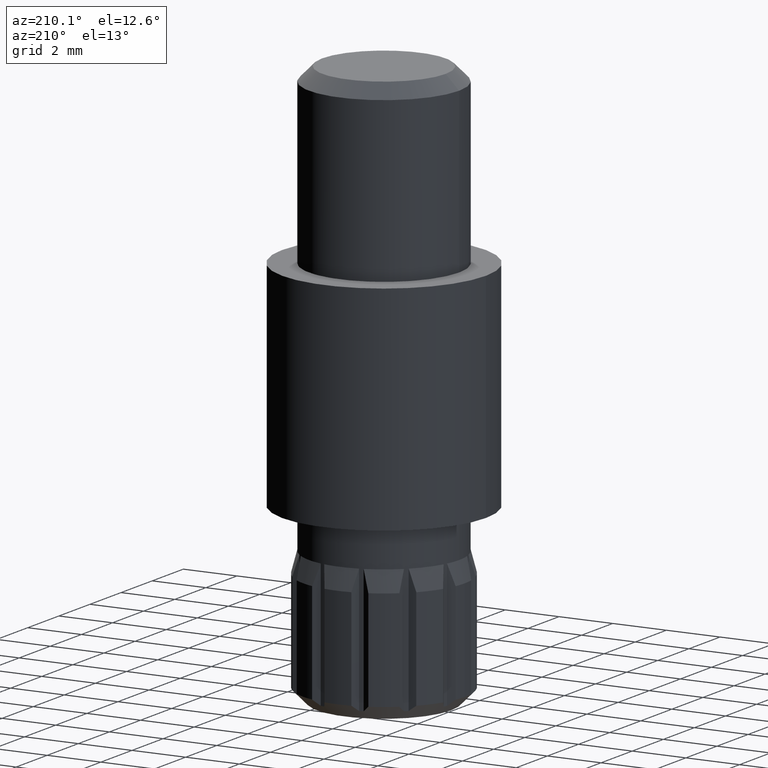
[diagram: clean part render]
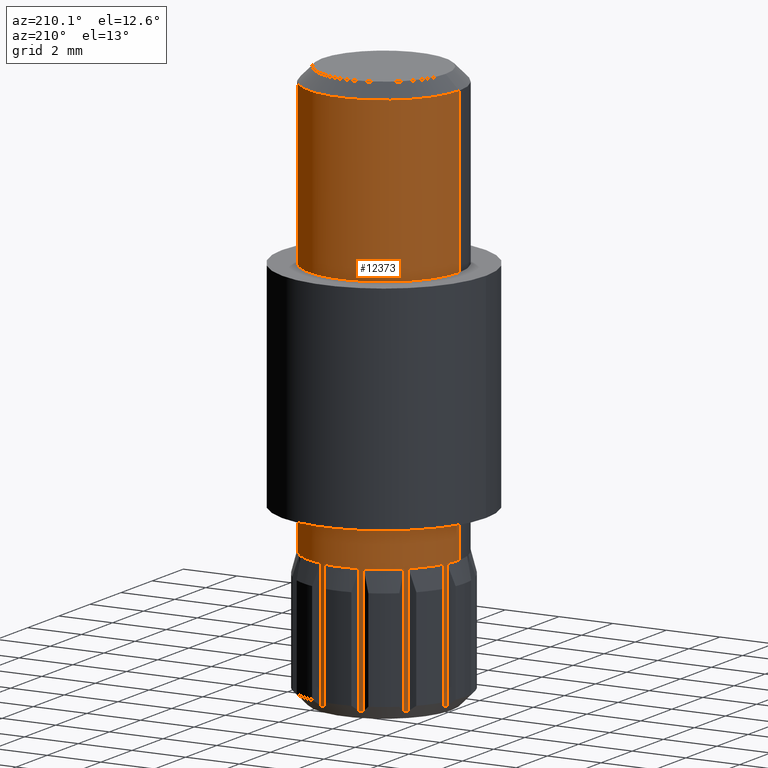
[diagram: same view with one face highlighted and labeled with its STEP entity id]
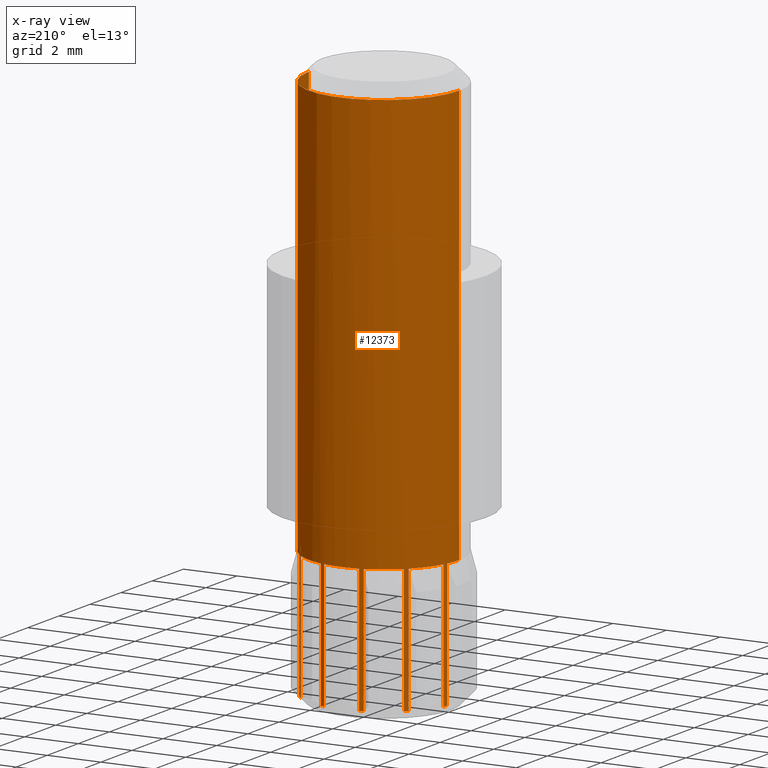
[diagram: x-ray of the same camera — body ghosted, the highlighted face saturated]
A machine part, auxiliary view. The second image highlights one B-rep face of the part: STEP entity #12373.
The next image is the same camera in x-ray: the body ghosted, the highlighted face saturated — about 0% of this face is hidden behind the body in this view.
In plain terms, the highlighted cylindrical surface (partial cylindrical patch) has radius 2.8 mm, axis along (-0, -0, -1).
Its self-contained STEP definition (entity closure, byte-faithful):
#5 = DIRECTION ( 'NONE',  ( 1.000000000000000000, 0.0000000000000000000, 0.0000000000000000000 ) ) ;
#92 = DIRECTION ( 'NONE',  ( 0.0000000000000000000, 0.0000000000000000000, 1.000000000000000000 ) ) ;
#130 = ORIENTED_EDGE ( 'NONE', *, *, #4485, .T. ) ;
#215 = EDGE_CURVE ( 'NONE', #10426, #12273, #4755, .T. ) ;
#311 = DIRECTION ( 'NONE',  ( 0.0000000000000000000, 0.0000000000000000000, 1.000000000000000000 ) ) ;
#484 = CARTESIAN_POINT ( 'NONE',  ( -0.6500000000000000200, 2.723508766279264300, 5.000000000000000000 ) ) ;
#579 = CARTESIAN_POINT ( 'NONE',  ( -0.6499999999999999100, 2.723508766279263900, 0.2999999999999996000 ) ) ;
#614 = AXIS2_PLACEMENT_3D ( 'NONE', #6847, #860, #7843 ) ;
#633 = ORIENTED_EDGE ( 'NONE', *, *, #1317, .T. ) ;
#691 = VERTEX_POINT ( 'NONE', #2503 ) ;
#811 = VECTOR ( 'NONE', #5266, 1000.000000000000000 ) ;
#860 = DIRECTION ( 'NONE',  ( 0.0000000000000000000, 0.0000000000000000000, 1.000000000000000000 ) ) ;
#885 = ORIENTED_EDGE ( 'NONE', *, *, #3033, .T. ) ;
#888 = CARTESIAN_POINT ( 'NONE',  ( 2.723508766279266500, 0.6499999999999904700, 5.000000000000000900 ) ) ;
#922 = CIRCLE ( 'NONE', #2795, 2.800000000000000300 ) ;
#977 = CARTESIAN_POINT ( 'NONE',  ( -2.799999999999999800, 0.0000000000000000000, 20.50000000000000400 ) ) ;
#988 = DIRECTION ( 'NONE',  ( 1.000000000000000000, 0.0000000000000000000, 0.0000000000000000000 ) ) ;
#1014 = CIRCLE ( 'NONE', #5647, 2.800000000000000300 ) ;
#1134 = ORIENTED_EDGE ( 'NONE', *, *, #2405, .F. ) ;
#1142 = AXIS2_PLACEMENT_3D ( 'NONE', #7932, #1966, #8940 ) ;
#1212 = CARTESIAN_POINT ( 'NONE',  ( -2.723508766279257200, 0.6500000000000284400, 0.2999999999999996000 ) ) ;
#1317 = EDGE_CURVE ( 'NONE', #12544, #7139, #11454, .T. ) ;
#1348 = CARTESIAN_POINT ( 'NONE',  ( 2.033627779027463100, 1.924670895599512700, 5.000000000000000000 ) ) ;
#1378 = CARTESIAN_POINT ( 'NONE',  ( 0.6500000000000000200, 2.723508766279264300, 5.000000000000000000 ) ) ;
#1399 = VERTEX_POINT ( 'NONE', #1212 ) ;
#1447 = CARTESIAN_POINT ( 'NONE',  ( 0.0000000000000000000, 0.0000000000000000000, 5.000000000000000000 ) ) ;
#1448 = CARTESIAN_POINT ( 'NONE',  ( 2.033627779027462600, 1.924670895599512400, 5.000000000000000900 ) ) ;
#1452 = VERTEX_POINT ( 'NONE', #10294 ) ;
#1539 = CARTESIAN_POINT ( 'NONE',  ( -2.033627779027435500, 1.924670895599541100, 5.000000000000000000 ) ) ;
#1561 = EDGE_LOOP ( 'NONE', ( #2504, #885, #12301, #11725, #11933, #8503, #5979, #5000, #5855, #1134, #9874, #2152, #3061, #8431, #4154, #2643, #4704, #1613, #11780, #11888, #633, #11758, #12396, #2315, #130, #6355, #11712, #10083 ) ) ;
#1599 = EDGE_CURVE ( 'NONE', #8572, #6581, #2232, .T. ) ;
#1613 = ORIENTED_EDGE ( 'NONE', *, *, #12640, .F. ) ;
#1634 = CARTESIAN_POINT ( 'NONE',  ( 2.683627779027459900, 0.7988378706797408800, 0.2999999999999996000 ) ) ;
#1733 = VERTEX_POINT ( 'NONE', #579 ) ;
#1860 = CARTESIAN_POINT ( 'NONE',  ( -2.723508766279257200, 0.6500000000000284400, 5.000000000000000000 ) ) ;
#1899 = LINE ( 'NONE', #10420, #12175 ) ;
#1966 = DIRECTION ( 'NONE',  ( -0.0000000000000000000, -0.0000000000000000000, 1.000000000000000000 ) ) ;
#1987 = LINE ( 'NONE', #484, #6984 ) ;
#1999 = CARTESIAN_POINT ( 'NONE',  ( 2.799999999999999800, 3.429011037612588300E-016, 20.50000000000000400 ) ) ;
#2019 = DIRECTION ( 'NONE',  ( 0.0000000000000000000, 0.0000000000000000000, 1.000000000000000000 ) ) ;
#2078 = EDGE_CURVE ( 'NONE', #9729, #8572, #7383, .T. ) ;
#2092 = VECTOR ( 'NONE', #9267, 1000.000000000000000 ) ;
#2152 = ORIENTED_EDGE ( 'NONE', *, *, #1599, .T. ) ;
#2156 = VERTEX_POINT ( 'NONE', #1448 ) ;
#2170 = LINE ( 'NONE', #1539, #4190 ) ;
#2200 = CARTESIAN_POINT ( 'NONE',  ( 0.0000000000000000000, 0.0000000000000000000, 0.2999999999999996000 ) ) ;
#2232 = LINE ( 'NONE', #4902, #7223 ) ;
#2315 = ORIENTED_EDGE ( 'NONE', *, *, #6096, .T. ) ;
#2319 = CARTESIAN_POINT ( 'NONE',  ( -2.683627779027448800, 0.7988378706797784100, 5.000000000000000000 ) ) ;
#2321 = EDGE_CURVE ( 'NONE', #5934, #3616, #11111, .T. ) ;
#2405 = EDGE_CURVE ( 'NONE', #9729, #3536, #2542, .T. ) ;
#2448 = DIRECTION ( 'NONE',  ( -1.047444401652940200E-014, -1.000000000000000000, 0.0000000000000000000 ) ) ;
#2493 = DIRECTION ( 'NONE',  ( 0.0000000000000000000, 0.0000000000000000000, -1.000000000000000000 ) ) ;
#2503 = CARTESIAN_POINT ( 'NONE',  ( 0.6500000000000001300, 2.723508766279265200, 5.000000000000000000 ) ) ;
#2504 = ORIENTED_EDGE ( 'NONE', *, *, #2321, .T. ) ;
#2542 = LINE ( 'NONE', #8001, #2853 ) ;
#2602 = VECTOR ( 'NONE', #8619, 1000.000000000000000 ) ;
#2643 = ORIENTED_EDGE ( 'NONE', *, *, #12459, .T. ) ;
#2749 = VECTOR ( 'NONE', #7336, 1000.000000000000000 ) ;
#2795 = AXIS2_PLACEMENT_3D ( 'NONE', #9974, #4008, #10984 ) ;
#2853 = VECTOR ( 'NONE', #8990, 1000.000000000000000 ) ;
#3029 = CARTESIAN_POINT ( 'NONE',  ( -2.033627779027435500, 1.924670895599541100, 0.2999999999999996000 ) ) ;
#3033 = EDGE_CURVE ( 'NONE', #3616, #12529, #8771, .T. ) ;
#3035 = AXIS2_PLACEMENT_3D ( 'NONE', #9536, #3573, #10559 ) ;
#3061 = ORIENTED_EDGE ( 'NONE', *, *, #5272, .T. ) ;
#3062 = VERTEX_POINT ( 'NONE', #7258 ) ;
#3158 = CARTESIAN_POINT ( 'NONE',  ( -0.7988378706797133500, 2.683627779027469200, 5.000000000000000000 ) ) ;
#3203 = DIRECTION ( 'NONE',  ( 1.000000000000000000, 0.0000000000000000000, 0.0000000000000000000 ) ) ;
#3225 = VERTEX_POINT ( 'NONE', #6706 ) ;
#3254 = CARTESIAN_POINT ( 'NONE',  ( -0.6500000000000000200, 2.723508766279264300, 5.000000000000000900 ) ) ;
#3354 = DIRECTION ( 'NONE',  ( -1.000000000000000000, 0.0000000000000000000, 0.0000000000000000000 ) ) ;
#3386 = LINE ( 'NONE', #10821, #8381 ) ;
#3387 = LINE ( 'NONE', #2319, #11349 ) ;
#3400 = CARTESIAN_POINT ( 'NONE',  ( 0.0000000000000000000, 0.0000000000000000000, 5.000000000000000000 ) ) ;
#3447 = VERTEX_POINT ( 'NONE', #11040 ) ;
#3536 = VERTEX_POINT ( 'NONE', #10250 ) ;
#3541 = DIRECTION ( 'NONE',  ( 0.0000000000000000000, 0.0000000000000000000, -1.000000000000000000 ) ) ;
#3573 = DIRECTION ( 'NONE',  ( 0.0000000000000000000, 0.0000000000000000000, 1.000000000000000000 ) ) ;
#3614 = AXIS2_PLACEMENT_3D ( 'NONE', #5697, #12659, #6678 ) ;
#3616 = VERTEX_POINT ( 'NONE', #1999 ) ;
#4008 = DIRECTION ( 'NONE',  ( 0.0000000000000000000, 0.0000000000000000000, 1.000000000000000000 ) ) ;
#4078 = EDGE_CURVE ( 'NONE', #1452, #3536, #6125, .T. ) ;
#4154 = ORIENTED_EDGE ( 'NONE', *, *, #11612, .T. ) ;
#4190 = VECTOR ( 'NONE', #3541, 1000.000000000000000 ) ;
#4408 = DIRECTION ( 'NONE',  ( -0.8660254037844380400, 0.5000000000000010000, 0.0000000000000000000 ) ) ;
#4485 = EDGE_CURVE ( 'NONE', #6937, #1399, #7683, .T. ) ;
#4704 = ORIENTED_EDGE ( 'NONE', *, *, #7176, .T. ) ;
#4755 = LINE ( 'NONE', #7919, #2092 ) ;
#4860 = DIRECTION ( 'NONE',  ( 0.0000000000000000000, 0.0000000000000000000, -1.000000000000000000 ) ) ;
#4902 = CARTESIAN_POINT ( 'NONE',  ( 0.7988378706797502100, 2.683627779027457200, 5.000000000000000000 ) ) ;
#4923 = AXIS2_PLACEMENT_3D ( 'NONE', #1447, #8421, #2448 ) ;
#4950 = DIRECTION ( 'NONE',  ( 0.0000000000000000000, 0.0000000000000000000, 1.000000000000000000 ) ) ;
#4960 = FACE_OUTER_BOUND ( 'NONE', #1561, .T. ) ;
#5000 = ORIENTED_EDGE ( 'NONE', *, *, #7798, .T. ) ;
#5085 = LINE ( 'NONE', #1348, #2749 ) ;
#5109 = VECTOR ( 'NONE', #9271, 1000.000000000000000 ) ;
#5266 = DIRECTION ( 'NONE',  ( -0.0000000000000000000, -0.0000000000000000000, -1.000000000000000000 ) ) ;
#5272 = EDGE_CURVE ( 'NONE', #6581, #12875, #10929, .T. ) ;
#5289 = DIRECTION ( 'NONE',  ( -0.0000000000000000000, -0.0000000000000000000, -1.000000000000000000 ) ) ;
#5305 = VERTEX_POINT ( 'NONE', #8963 ) ;
#5487 = VECTOR ( 'NONE', #12447, 1000.000000000000000 ) ;
#5612 = AXIS2_PLACEMENT_3D ( 'NONE', #9326, #5289, #3354 ) ;
#5647 = AXIS2_PLACEMENT_3D ( 'NONE', #7988, #2019, #8978 ) ;
#5697 = CARTESIAN_POINT ( 'NONE',  ( 0.0000000000000000000, 0.0000000000000000000, 20.50000000000000400 ) ) ;
#5698 = CARTESIAN_POINT ( 'NONE',  ( -2.683627779027448800, 0.7988378706797785200, 0.2999999999999998200 ) ) ;
#5807 = LINE ( 'NONE', #8473, #5487 ) ;
#5855 = ORIENTED_EDGE ( 'NONE', *, *, #4078, .T. ) ;
#5921 = DIRECTION ( 'NONE',  ( 0.0000000000000000000, 0.0000000000000000000, -1.000000000000000000 ) ) ;
#5934 = VERTEX_POINT ( 'NONE', #977 ) ;
#5979 = ORIENTED_EDGE ( 'NONE', *, *, #7623, .T. ) ;
#5999 = DIRECTION ( 'NONE',  ( 0.0000000000000000000, 0.0000000000000000000, 1.000000000000000000 ) ) ;
#6034 = VERTEX_POINT ( 'NONE', #3158 ) ;
#6077 = CARTESIAN_POINT ( 'NONE',  ( 0.0000000000000000000, 0.0000000000000000000, 0.2999999999999996000 ) ) ;
#6096 = EDGE_CURVE ( 'NONE', #11145, #6937, #3387, .T. ) ;
#6125 = CIRCLE ( 'NONE', #614, 2.799999999999999800 ) ;
#6306 = CARTESIAN_POINT ( 'NONE',  ( 0.0000000000000000000, 0.0000000000000000000, 5.000000000000000000 ) ) ;
#6338 = CIRCLE ( 'NONE', #12142, 2.800000000000000300 ) ;
#6350 = CIRCLE ( 'NONE', #3035, 2.799999999999999800 ) ;
#6355 = ORIENTED_EDGE ( 'NONE', *, *, #7614, .F. ) ;
#6430 = CARTESIAN_POINT ( 'NONE',  ( -0.7988378706797126800, 2.683627779027468300, 0.2999999999999998200 ) ) ;
#6581 = VERTEX_POINT ( 'NONE', #9577 ) ;
#6616 = CARTESIAN_POINT ( 'NONE',  ( -2.800000000000000300, 0.0000000000000000000, 5.000000000000000000 ) ) ;
#6646 = CARTESIAN_POINT ( 'NONE',  ( -1.924670895599491100, 2.033627779027482600, 0.2999999999999996000 ) ) ;
#6678 = DIRECTION ( 'NONE',  ( 1.000000000000000000, 0.0000000000000000000, 0.0000000000000000000 ) ) ;
#6706 = CARTESIAN_POINT ( 'NONE',  ( -2.723508766279258100, 0.6500000000000286700, 5.000000000000000000 ) ) ;
#6765 = VERTEX_POINT ( 'NONE', #3254 ) ;
#6808 = CARTESIAN_POINT ( 'NONE',  ( -2.683627779027448800, 0.7988378706797785200, 5.000000000000000900 ) ) ;
#6812 = EDGE_CURVE ( 'NONE', #12273, #10678, #6350, .T. ) ;
#6847 = CARTESIAN_POINT ( 'NONE',  ( 0.0000000000000000000, 0.0000000000000000000, 0.2999999999999996000 ) ) ;
#6937 = VERTEX_POINT ( 'NONE', #5698 ) ;
#6972 = DIRECTION ( 'NONE',  ( 0.0000000000000000000, 0.0000000000000000000, 1.000000000000000000 ) ) ;
#6984 = VECTOR ( 'NONE', #2493, 1000.000000000000000 ) ;
#7077 = DIRECTION ( 'NONE',  ( 1.000000000000000000, 0.0000000000000000000, 0.0000000000000000000 ) ) ;
#7139 = VERTEX_POINT ( 'NONE', #3029 ) ;
#7176 = EDGE_CURVE ( 'NONE', #1733, #10631, #9765, .T. ) ;
#7220 = CARTESIAN_POINT ( 'NONE',  ( 2.799999999999999800, 3.429011037612588300E-016, 21.00000000000000000 ) ) ;
#7223 = VECTOR ( 'NONE', #5921, 1000.000000000000000 ) ;
#7258 = CARTESIAN_POINT ( 'NONE',  ( -1.924670895599491100, 2.033627779027482600, 5.000000000000000900 ) ) ;
#7297 = DIRECTION ( 'NONE',  ( -0.5000000000000101000, -0.8660254037844328200, 0.0000000000000000000 ) ) ;
#7336 = DIRECTION ( 'NONE',  ( 0.0000000000000000000, 0.0000000000000000000, -1.000000000000000000 ) ) ;
#7383 = CIRCLE ( 'NONE', #11204, 2.800000000000000700 ) ;
#7446 = EDGE_CURVE ( 'NONE', #3447, #10678, #7894, .T. ) ;
#7455 = LINE ( 'NONE', #1378, #5109 ) ;
#7614 = EDGE_CURVE ( 'NONE', #3225, #1399, #11642, .T. ) ;
#7623 = EDGE_CURVE ( 'NONE', #3447, #2156, #6338, .T. ) ;
#7643 = EDGE_CURVE ( 'NONE', #6034, #3062, #1014, .T. ) ;
#7683 = CIRCLE ( 'NONE', #9955, 2.799999999999999800 ) ;
#7798 = EDGE_CURVE ( 'NONE', #2156, #1452, #5085, .T. ) ;
#7843 = DIRECTION ( 'NONE',  ( 1.000000000000000000, 0.0000000000000000000, 0.0000000000000000000 ) ) ;
#7894 = LINE ( 'NONE', #11625, #2602 ) ;
#7919 = CARTESIAN_POINT ( 'NONE',  ( 2.723508766279266500, 0.6499999999999904700, 5.000000000000000000 ) ) ;
#7932 = CARTESIAN_POINT ( 'NONE',  ( 0.0000000000000000000, 0.0000000000000000000, 5.000000000000000000 ) ) ;
#7985 = CARTESIAN_POINT ( 'NONE',  ( 2.723508766279266500, 0.6499999999999904700, 0.2999999999999997100 ) ) ;
#7988 = CARTESIAN_POINT ( 'NONE',  ( 0.0000000000000000000, 0.0000000000000000000, 5.000000000000000000 ) ) ;
#8001 = CARTESIAN_POINT ( 'NONE',  ( 1.924670895599519800, 2.033627779027456000, 5.000000000000000000 ) ) ;
#8300 = CARTESIAN_POINT ( 'NONE',  ( 0.6499999999999999100, 2.723508766279263900, 0.2999999999999996000 ) ) ;
#8381 = VECTOR ( 'NONE', #12884, 1000.000000000000000 ) ;
#8421 = DIRECTION ( 'NONE',  ( 0.0000000000000000000, 0.0000000000000000000, 1.000000000000000000 ) ) ;
#8431 = ORIENTED_EDGE ( 'NONE', *, *, #12792, .F. ) ;
#8473 = CARTESIAN_POINT ( 'NONE',  ( -1.924670895599491100, 2.033627779027482600, 5.000000000000000000 ) ) ;
#8482 = EDGE_CURVE ( 'NONE', #3062, #12544, #5807, .T. ) ;
#8503 = ORIENTED_EDGE ( 'NONE', *, *, #7446, .F. ) ;
#8552 = CIRCLE ( 'NONE', #10529, 2.799999999999999800 ) ;
#8572 = VERTEX_POINT ( 'NONE', #10743 ) ;
#8619 = DIRECTION ( 'NONE',  ( 0.0000000000000000000, 0.0000000000000000000, -1.000000000000000000 ) ) ;
#8725 = AXIS2_PLACEMENT_3D ( 'NONE', #12955, #6972, #988 ) ;
#8771 = LINE ( 'NONE', #7220, #811 ) ;
#8940 = DIRECTION ( 'NONE',  ( -1.000000000000000000, 0.0000000000000000000, 0.0000000000000000000 ) ) ;
#8963 = CARTESIAN_POINT ( 'NONE',  ( -2.033627779027436400, 1.924670895599542200, 5.000000000000000000 ) ) ;
#8970 = VECTOR ( 'NONE', #4860, 1000.000000000000000 ) ;
#8978 = DIRECTION ( 'NONE',  ( -0.8660254037844449200, -0.4999999999999889500, 0.0000000000000000000 ) ) ;
#8990 = DIRECTION ( 'NONE',  ( 0.0000000000000000000, 0.0000000000000000000, -1.000000000000000000 ) ) ;
#9038 = EDGE_CURVE ( 'NONE', #5934, #11464, #1899, .T. ) ;
#9161 = DIRECTION ( 'NONE',  ( 0.0000000000000000000, 0.0000000000000000000, 1.000000000000000000 ) ) ;
#9267 = DIRECTION ( 'NONE',  ( 0.0000000000000000000, 0.0000000000000000000, -1.000000000000000000 ) ) ;
#9271 = DIRECTION ( 'NONE',  ( 0.0000000000000000000, 0.0000000000000000000, -1.000000000000000000 ) ) ;
#9295 = DIRECTION ( 'NONE',  ( 0.0000000000000000000, 0.0000000000000000000, -1.000000000000000000 ) ) ;
#9326 = CARTESIAN_POINT ( 'NONE',  ( 0.0000000000000000000, 0.0000000000000000000, 21.00000000000000000 ) ) ;
#9536 = CARTESIAN_POINT ( 'NONE',  ( 0.0000000000000000000, 0.0000000000000000000, 0.2999999999999996000 ) ) ;
#9577 = CARTESIAN_POINT ( 'NONE',  ( 0.7988378706797500900, 2.683627779027457200, 0.2999999999999997700 ) ) ;
#9729 = VERTEX_POINT ( 'NONE', #10031 ) ;
#9765 = CIRCLE ( 'NONE', #10403, 2.799999999999999800 ) ;
#9874 = ORIENTED_EDGE ( 'NONE', *, *, #2078, .T. ) ;
#9937 = CIRCLE ( 'NONE', #4923, 2.800000000000000300 ) ;
#9955 = AXIS2_PLACEMENT_3D ( 'NONE', #11942, #5999, #5 ) ;
#9974 = CARTESIAN_POINT ( 'NONE',  ( 0.0000000000000000000, 0.0000000000000000000, 5.000000000000000000 ) ) ;
#10031 = CARTESIAN_POINT ( 'NONE',  ( 1.924670895599520400, 2.033627779027456400, 5.000000000000000000 ) ) ;
#10083 = ORIENTED_EDGE ( 'NONE', *, *, #9038, .F. ) ;
#10250 = CARTESIAN_POINT ( 'NONE',  ( 1.924670895599519500, 2.033627779027455500, 0.2999999999999996000 ) ) ;
#10294 = CARTESIAN_POINT ( 'NONE',  ( 2.033627779027463100, 1.924670895599512700, 0.2999999999999999300 ) ) ;
#10385 = DIRECTION ( 'NONE',  ( 0.0000000000000000000, 0.0000000000000000000, 1.000000000000000000 ) ) ;
#10403 = AXIS2_PLACEMENT_3D ( 'NONE', #2200, #9161, #3203 ) ;
#10420 = CARTESIAN_POINT ( 'NONE',  ( -2.799999999999999800, 0.0000000000000000000, 21.00000000000000000 ) ) ;
#10426 = VERTEX_POINT ( 'NONE', #888 ) ;
#10529 = AXIS2_PLACEMENT_3D ( 'NONE', #6306, #311, #7297 ) ;
#10559 = DIRECTION ( 'NONE',  ( 1.000000000000000000, 0.0000000000000000000, 0.0000000000000000000 ) ) ;
#10631 = VERTEX_POINT ( 'NONE', #6430 ) ;
#10671 = EDGE_CURVE ( 'NONE', #5305, #7139, #2170, .T. ) ;
#10678 = VERTEX_POINT ( 'NONE', #1634 ) ;
#10743 = CARTESIAN_POINT ( 'NONE',  ( 0.7988378706797502100, 2.683627779027457200, 5.000000000000000900 ) ) ;
#10752 = EDGE_CURVE ( 'NONE', #12529, #10426, #922, .T. ) ;
#10821 = CARTESIAN_POINT ( 'NONE',  ( -0.7988378706797127900, 2.683627779027468300, 5.000000000000000000 ) ) ;
#10911 = CARTESIAN_POINT ( 'NONE',  ( 0.0000000000000000000, 0.0000000000000000000, 5.000000000000000000 ) ) ;
#10929 = CIRCLE ( 'NONE', #8725, 2.799999999999999800 ) ;
#10984 = DIRECTION ( 'NONE',  ( 3.491481338843133700E-015, 1.000000000000000000, 0.0000000000000000000 ) ) ;
#11040 = CARTESIAN_POINT ( 'NONE',  ( 2.683627779027460700, 0.7988378706797413200, 5.000000000000000000 ) ) ;
#11111 = CIRCLE ( 'NONE', #3614, 2.799999999999999800 ) ;
#11145 = VERTEX_POINT ( 'NONE', #6808 ) ;
#11204 = AXIS2_PLACEMENT_3D ( 'NONE', #3400, #10385, #4408 ) ;
#11349 = VECTOR ( 'NONE', #9295, 1000.000000000000000 ) ;
#11361 = CIRCLE ( 'NONE', #1142, 2.800000000000000300 ) ;
#11425 = DIRECTION ( 'NONE',  ( -0.0000000000000000000, -0.0000000000000000000, -1.000000000000000000 ) ) ;
#11454 = CIRCLE ( 'NONE', #11902, 2.799999999999999800 ) ;
#11464 = VERTEX_POINT ( 'NONE', #6616 ) ;
#11612 = EDGE_CURVE ( 'NONE', #691, #6765, #11361, .T. ) ;
#11625 = CARTESIAN_POINT ( 'NONE',  ( 2.683627779027459900, 0.7988378706797408800, 5.000000000000000000 ) ) ;
#11642 = LINE ( 'NONE', #1860, #8970 ) ;
#11712 = ORIENTED_EDGE ( 'NONE', *, *, #12412, .T. ) ;
#11725 = ORIENTED_EDGE ( 'NONE', *, *, #215, .T. ) ;
#11758 = ORIENTED_EDGE ( 'NONE', *, *, #10671, .F. ) ;
#11780 = ORIENTED_EDGE ( 'NONE', *, *, #7643, .T. ) ;
#11888 = ORIENTED_EDGE ( 'NONE', *, *, #8482, .T. ) ;
#11902 = AXIS2_PLACEMENT_3D ( 'NONE', #6077, #92, #7077 ) ;
#11917 = DIRECTION ( 'NONE',  ( -0.4999999999999980000, 0.8660254037844399300, 0.0000000000000000000 ) ) ;
#11933 = ORIENTED_EDGE ( 'NONE', *, *, #6812, .T. ) ;
#11942 = CARTESIAN_POINT ( 'NONE',  ( 0.0000000000000000000, 0.0000000000000000000, 0.2999999999999996000 ) ) ;
#12087 = EDGE_CURVE ( 'NONE', #5305, #11145, #8552, .T. ) ;
#12142 = AXIS2_PLACEMENT_3D ( 'NONE', #10911, #4950, #11917 ) ;
#12175 = VECTOR ( 'NONE', #11425, 1000.000000000000000 ) ;
#12273 = VERTEX_POINT ( 'NONE', #7985 ) ;
#12301 = ORIENTED_EDGE ( 'NONE', *, *, #10752, .T. ) ;
#12373 = ADVANCED_FACE ( 'NONE', ( #4960 ), #12622, .T. ) ;
#12396 = ORIENTED_EDGE ( 'NONE', *, *, #12087, .T. ) ;
#12412 = EDGE_CURVE ( 'NONE', #3225, #11464, #9937, .T. ) ;
#12447 = DIRECTION ( 'NONE',  ( 0.0000000000000000000, 0.0000000000000000000, -1.000000000000000000 ) ) ;
#12459 = EDGE_CURVE ( 'NONE', #6765, #1733, #1987, .T. ) ;
#12529 = VERTEX_POINT ( 'NONE', #12624 ) ;
#12544 = VERTEX_POINT ( 'NONE', #6646 ) ;
#12622 = CYLINDRICAL_SURFACE ( 'NONE', #5612, 2.799999999999999800 ) ;
#12624 = CARTESIAN_POINT ( 'NONE',  ( 2.800000000000000300, 3.429011037612589300E-016, 5.000000000000000000 ) ) ;
#12640 = EDGE_CURVE ( 'NONE', #6034, #10631, #3386, .T. ) ;
#12659 = DIRECTION ( 'NONE',  ( 0.0000000000000000000, 0.0000000000000000000, -1.000000000000000000 ) ) ;
#12792 = EDGE_CURVE ( 'NONE', #691, #12875, #7455, .T. ) ;
#12875 = VERTEX_POINT ( 'NONE', #8300 ) ;
#12884 = DIRECTION ( 'NONE',  ( 0.0000000000000000000, 0.0000000000000000000, -1.000000000000000000 ) ) ;
#12955 = CARTESIAN_POINT ( 'NONE',  ( 0.0000000000000000000, 0.0000000000000000000, 0.2999999999999996000 ) ) ;